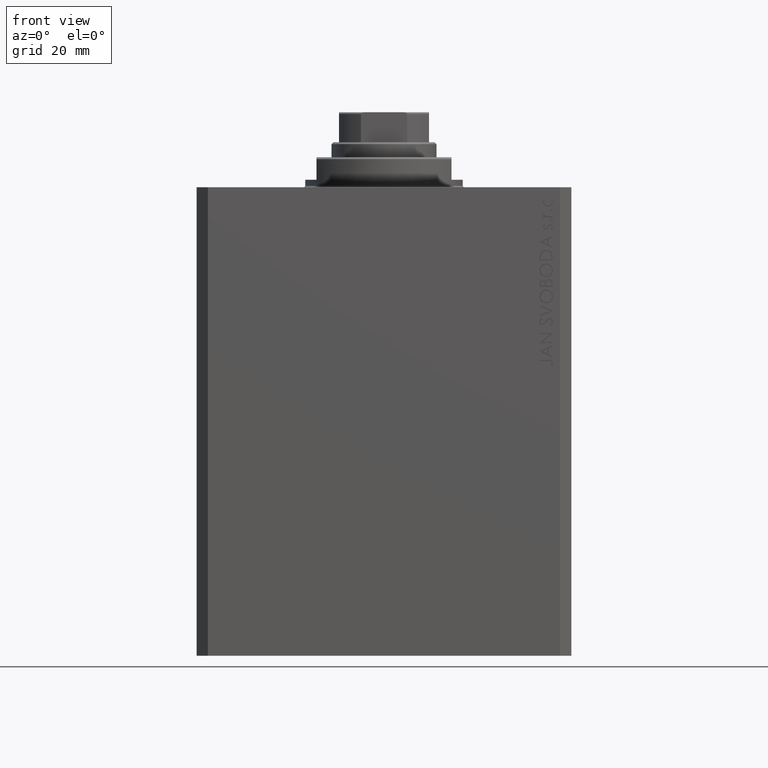
[diagram: clean part render]
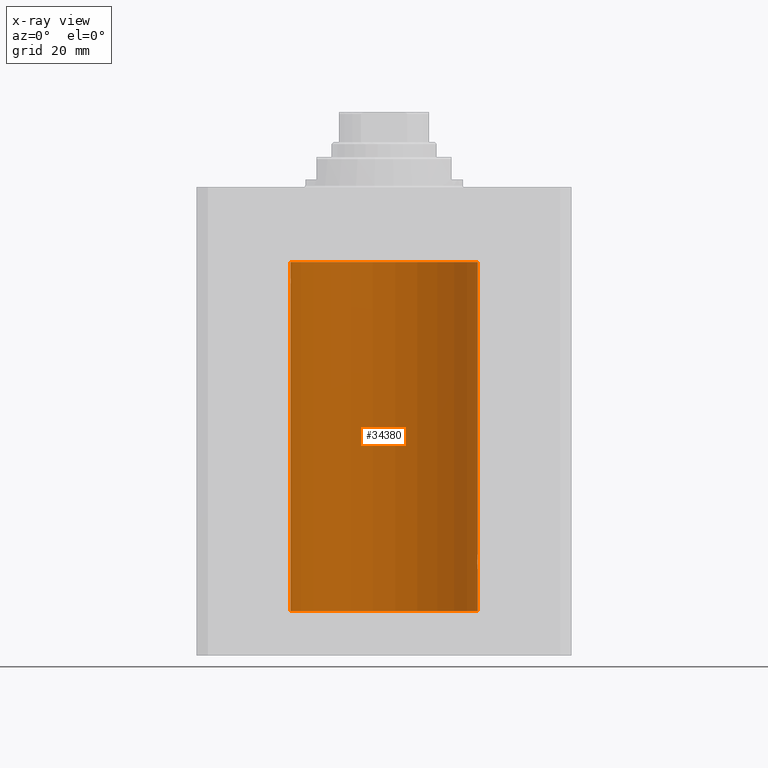
[diagram: x-ray — body ghosted, one internal face saturated and labeled with its STEP entity id]
A machine part, front view, then the same camera in x-ray: the body is ghosted and one INTERNAL B-rep face — a face not visible from any outside direction — is saturated and labeled: STEP entity #34380.
In plain terms, the highlighted cylindrical surface (partial cylindrical patch) has radius 25 mm, axis along (0, 0, 1).
Its self-contained STEP definition (entity closure, byte-faithful):
#56 = CARTESIAN_POINT ( 'NONE',  ( 25.00000000000000000, 3.613683980139323145E-15, -102.0000000000000142 ) ) ;
#1412 = CARTESIAN_POINT ( 'NONE',  ( -24.91986783040116649, 2.000046828840892577, -25.12978542103931545 ) ) ;
#1750 = DIRECTION ( 'NONE',  ( 0.000000000000000000, 0.000000000000000000, 1.000000000000000000 ) ) ;
#1823 = CARTESIAN_POINT ( 'NONE',  ( 24.95467834240023919, 1.507571193169164436, -98.67914516237102873 ) ) ;
#2035 = CARTESIAN_POINT ( 'NONE',  ( 24.91987158875419794, 2.000000000000375255, -100.0000000000000000 ) ) ;
#2046 = CARTESIAN_POINT ( 'NONE',  ( 24.93982559358191153, 1.735040297787688646, -98.99670286233153149 ) ) ;
#2110 = CARTESIAN_POINT ( 'NONE',  ( -24.93531696180024682, 1.797913585505315215, -25.88582454002299826 ) ) ;
#2623 = DIRECTION ( 'NONE',  ( 1.000000000000000000, 0.000000000000000000, 0.000000000000000000 ) ) ;
#3404 = CARTESIAN_POINT ( 'NONE',  ( 24.93900639076503722, 1.748128916801924504, -101.0059564568424264 ) ) ;
#3906 = VERTEX_POINT ( 'NONE', #2035 ) ;
#4458 = VERTEX_POINT ( 'NONE', #13152 ) ;
#4660 = ORIENTED_EDGE ( 'NONE', *, *, #43596, .T. ) ;
#4936 = CARTESIAN_POINT ( 'NONE',  ( 24.98009620012517829, 1.003265033550135854, -98.26494305889434600 ) ) ;
#4957 = CARTESIAN_POINT ( 'NONE',  ( 0.000000000000000000, 0.000000000000000000, -20.00000000000000355 ) ) ;
#5201 = ORIENTED_EDGE ( 'NONE', *, *, #37148, .F. ) ;
#5227 = CARTESIAN_POINT ( 'NONE',  ( -24.96524308704138662, 1.321128302361972873, -26.50733385850702817 ) ) ;
#5539 = B_SPLINE_CURVE_WITH_KNOTS ( 'NONE', 3,
 ( #16906, #45557, #41741, #30777, #38395, #27192, #41279, #38159, #12397, #13098, #8587, #23129, #34111, #1412, #20241, #34812, #8813, #2110, #20018, #27657, #34588, #5227, #16443, #42212, #31002, #5703, #31230, #27424, #38619, #15967 ),
 .UNSPECIFIED., .F., .F.,
 ( 4, 2, 2, 2, 2, 2, 2, 2, 2, 2, 2, 2, 2, 2, 4 ),
 ( 1.711460648662030874E-19, 0.0003909631133201684925, 0.0007819262266403368767, 0.001172889339960505152, 0.001563852453280673536, 0.002345778679921010305, 0.003127704906561347507, 0.003518668019881516108, 0.003909631133201684275, 0.004300594246521852876, 0.004691557359842020609, 0.005082520473162189210, 0.005473483586482357811, 0.005864446699802525545, 0.006255409813122695013 ),
 .UNSPECIFIED. ) ;
#5572 = CIRCLE ( 'NONE', #26150, 25.00000000000000000 ) ;
#5703 = CARTESIAN_POINT ( 'NONE',  ( -24.99199174798888023, 0.6442364453337716679, -26.89793475977048232 ) ) ;
#6189 = ORIENTED_EDGE ( 'NONE', *, *, #10007, .T. ) ;
#6253 = VERTEX_POINT ( 'NONE', #39879 ) ;
#6793 = AXIS2_PLACEMENT_3D ( 'NONE', #34629, #16950, #2623 ) ;
#6965 = VERTEX_POINT ( 'NONE', #8689 ) ;
#7174 = EDGE_CURVE ( 'NONE', #46425, #6965, #25358, .T. ) ;
#7767 = ORIENTED_EDGE ( 'NONE', *, *, #7174, .F. ) ;
#8090 = ORIENTED_EDGE ( 'NONE', *, *, #45064, .F. ) ;
#8469 = EDGE_CURVE ( 'NONE', #46425, #18942, #5539, .T. ) ;
#8518 = CARTESIAN_POINT ( 'NONE',  ( 25.00000000000000000, -1.072061970195355044E-23, -98.00000000000000000 ) ) ;
#8587 = CARTESIAN_POINT ( 'NONE',  ( -24.93902394873053296, 1.747880816115506164, -23.99362802520557025 ) ) ;
#8689 = CARTESIAN_POINT ( 'NONE',  ( -25.00000000000000000, 3.061616997868383043E-15, -20.00000000000000355 ) ) ;
#8813 = CARTESIAN_POINT ( 'NONE',  ( -24.92788761901291750, 1.898142276082072089, -25.64361034516351978 ) ) ;
#8978 = CARTESIAN_POINT ( 'NONE',  ( 24.98457651818866765, 0.8863534138924961114, -98.20234421602245334 ) ) ;
#9327 = CYLINDRICAL_SURFACE ( 'NONE', #6793, 25.00000000000000000 ) ;
#9350 = VECTOR ( 'NONE', #10245, 1000.000000000000000 ) ;
#10007 = EDGE_CURVE ( 'NONE', #4458, #3906, #22645, .T. ) ;
#10067 = CIRCLE ( 'NONE', #42839, 25.00000000000000000 ) ;
#10245 = DIRECTION ( 'NONE',  ( -0.000000000000000000, -0.000000000000000000, 1.000000000000000000 ) ) ;
#10716 = EDGE_CURVE ( 'NONE', #3906, #30111, #46495, .T. ) ;
#11882 = DIRECTION ( 'NONE',  ( 0.000000000000000000, 0.000000000000000000, 1.000000000000000000 ) ) ;
#12092 = CARTESIAN_POINT ( 'NONE',  ( 24.92495585240437350, 1.935777409849491759, -99.48051441220836466 ) ) ;
#12397 = CARTESIAN_POINT ( 'NONE',  ( -24.96517827869064021, 1.322271947215002852, -23.49381014772490417 ) ) ;
#12571 = CARTESIAN_POINT ( 'NONE',  ( 24.94947734723934829, 1.590234439578154468, -98.78011295253192259 ) ) ;
#12826 = EDGE_CURVE ( 'NONE', #30111, #43896, #21506, .T. ) ;
#13028 = CARTESIAN_POINT ( 'NONE',  ( 24.92092960952687264, 1.986938806757485132, -99.73699118910590755 ) ) ;
#13098 = CARTESIAN_POINT ( 'NONE',  ( -24.94950203352433604, 1.598895442473012851, -23.77053781758364792 ) ) ;
#13152 = CARTESIAN_POINT ( 'NONE',  ( 25.00000000000000000, 3.613683980139323145E-15, -102.0000000000000142 ) ) ;
#13700 = ORIENTED_EDGE ( 'NONE', *, *, #10716, .T. ) ;
#13917 = CARTESIAN_POINT ( 'NONE',  ( 24.97046928552373046, 1.219632852334577633, -101.5904672177837540 ) ) ;
#14156 = CARTESIAN_POINT ( 'NONE',  ( 24.91987158875419794, 2.000000000000375255, -100.0000000000000000 ) ) ;
#14626 = CARTESIAN_POINT ( 'NONE',  ( 24.91987158875419439, 2.000000000000375699, -100.2610752061100072 ) ) ;
#15899 = CARTESIAN_POINT ( 'NONE',  ( 24.97045842037802998, 1.219816859706691625, -98.40971381657300299 ) ) ;
#15967 = CARTESIAN_POINT ( 'NONE',  ( -25.00000000000000000, 3.061616987151861079E-15, -26.99999999999999645 ) ) ;
#16143 = CARTESIAN_POINT ( 'NONE',  ( 24.92790171662583276, 1.897957730269075105, -99.35585098575664631 ) ) ;
#16373 = CARTESIAN_POINT ( 'NONE',  ( -25.00000000000000000, 3.061616997868383043E-15, -113.0999999999999943 ) ) ;
#16374 = CARTESIAN_POINT ( 'NONE',  ( 24.99894413130754600, 0.2631018416927612402, -98.01307842488789390 ) ) ;
#16443 = CARTESIAN_POINT ( 'NONE',  ( -24.97044682385318026, 1.220055540032808805, -26.59010549084178265 ) ) ;
#16760 = CARTESIAN_POINT ( 'NONE',  ( 0.000000000000000000, 0.000000000000000000, -113.0999999999999943 ) ) ;
#16906 = CARTESIAN_POINT ( 'NONE',  ( -25.00000000000000000, -9.880247245846597702E-15, -23.00000000000000000 ) ) ;
#16950 = DIRECTION ( 'NONE',  ( -0.000000000000000000, -0.000000000000000000, 1.000000000000000000 ) ) ;
#18187 = VERTEX_POINT ( 'NONE', #22718 ) ;
#18440 = CARTESIAN_POINT ( 'NONE',  ( 24.96516502151963124, 1.322522485723470531, -101.5059723511098184 ) ) ;
#18942 = VERTEX_POINT ( 'NONE', #21560 ) ;
#19487 = CARTESIAN_POINT ( 'NONE',  ( 24.99199530066696795, 0.6440939830361788188, -98.10201906410962636 ) ) ;
#20018 = CARTESIAN_POINT ( 'NONE',  ( -24.93980871060585258, 1.735282661184229358, -26.00288189918856219 ) ) ;
#20039 = CARTESIAN_POINT ( 'NONE',  ( 25.00000000000000000, 0.000000000000000000, -113.0999999999999943 ) ) ;
#20241 = CARTESIAN_POINT ( 'NONE',  ( -24.92092244115666944, 1.987028274514494930, -25.26234881237649432 ) ) ;
#21506 = LINE ( 'NONE', #32021, #34375 ) ;
#21560 = CARTESIAN_POINT ( 'NONE',  ( -25.00000000000000000, 3.061616987151861079E-15, -26.99999999999999645 ) ) ;
#21685 = EDGE_LOOP ( 'NONE', ( #5201, #8090, #4660, #6189, #13700, #41936, #40094, #7767, #36976 ) ) ;
#22645 = B_SPLINE_CURVE_WITH_KNOTS ( 'NONE', 3,
 ( #56, #32289, #47087, #46855, #28477, #46613, #36106, #13917, #18440, #28945, #3404, #43028, #14626, #14156 ),
 .UNSPECIFIED., .F., .F.,
 ( 4, 2, 2, 2, 2, 2, 4 ),
 ( 3.511612687242254074E-18, 0.0003910529405526748294, 0.0007821058811053461894, 0.001173158821658017766, 0.001564211762210689343, 0.002346317643316032063, 0.003128423524421375217 ),
 .UNSPECIFIED. ) ;
#22718 = CARTESIAN_POINT ( 'NONE',  ( 25.00000000000000000, 0.000000000000000000, -113.0999999999999943 ) ) ;
#23129 = CARTESIAN_POINT ( 'NONE',  ( -24.92424086025528496, 1.947362422016076788, -24.47497476601984090 ) ) ;
#23288 = DIRECTION ( 'NONE',  ( -0.000000000000000000, -0.000000000000000000, 1.000000000000000000 ) ) ;
#23990 = CARTESIAN_POINT ( 'NONE',  ( 24.99493190796009046, 0.5194315891213243663, -98.06421314474680173 ) ) ;
#25115 = DIRECTION ( 'NONE',  ( -0.000000000000000000, -0.000000000000000000, 1.000000000000000000 ) ) ;
#25358 = LINE ( 'NONE', #46359, #39823 ) ;
#26150 = AXIS2_PLACEMENT_3D ( 'NONE', #16760, #1750, #30862 ) ;
#26633 = CARTESIAN_POINT ( 'NONE',  ( -25.00000000000000000, -9.880247245846597702E-15, -23.00000000000000000 ) ) ;
#27129 = CARTESIAN_POINT ( 'NONE',  ( 24.96525661602875701, 1.320872503675244003, -98.49244428507738292 ) ) ;
#27192 = CARTESIAN_POINT ( 'NONE',  ( -24.98454822070441850, 0.8871466876120172040, -23.20273613247366384 ) ) ;
#27351 = CARTESIAN_POINT ( 'NONE',  ( 24.93533359819881667, 1.797683477752171743, -99.11371245509397454 ) ) ;
#27424 = CARTESIAN_POINT ( 'NONE',  ( -24.99894363691344168, 0.2631623743596695486, -26.98691550260398841 ) ) ;
#27657 = CARTESIAN_POINT ( 'NONE',  ( -24.94946096189906015, 1.590491165172939647, -26.21955560407613461 ) ) ;
#28455 = DIRECTION ( 'NONE',  ( -0.000000000000000000, -0.000000000000000000, 1.000000000000000000 ) ) ;
#28477 = CARTESIAN_POINT ( 'NONE',  ( 24.99196954445030627, 0.6450912151121352966, -101.8976436764501869 ) ) ;
#28945 = CARTESIAN_POINT ( 'NONE',  ( 24.94948532700468391, 1.599156973339999066, -101.2291341524913690 ) ) ;
#28986 = VECTOR ( 'NONE', #23288, 1000.000000000000000 ) ;
#29997 = CARTESIAN_POINT ( 'NONE',  ( 25.00000000000000000, -1.072061970195355044E-23, -98.00000000000000000 ) ) ;
#30111 = VERTEX_POINT ( 'NONE', #29997 ) ;
#30777 = CARTESIAN_POINT ( 'NONE',  ( -24.99496228453478608, 0.5178909248663671194, -23.06382286360416956 ) ) ;
#30862 = DIRECTION ( 'NONE',  ( 1.000000000000000000, 0.000000000000000000, 0.000000000000000000 ) ) ;
#30936 = CARTESIAN_POINT ( 'NONE',  ( 25.00000000000000000, 0.1305261351234896783, -97.99999999999998579 ) ) ;
#31002 = CARTESIAN_POINT ( 'NONE',  ( -24.98456984035221851, 0.8865449913022026562, -26.79756360895472156 ) ) ;
#31230 = CARTESIAN_POINT ( 'NONE',  ( -24.99492963589240091, 0.5195477780157325975, -26.93575766978349151 ) ) ;
#31277 = FACE_OUTER_BOUND ( 'NONE', #21685, .T. ) ;
#32021 = CARTESIAN_POINT ( 'NONE',  ( 25.00000000000000000, 0.000000000000000000, -113.0999999999999943 ) ) ;
#32289 = CARTESIAN_POINT ( 'NONE',  ( 25.00000000000000355, 0.1322318523520167877, -102.0000000000000142 ) ) ;
#34069 = DIRECTION ( 'NONE',  ( 1.000000000000000000, 0.000000000000000000, 0.000000000000000000 ) ) ;
#34111 = CARTESIAN_POINT ( 'NONE',  ( -24.91987913663314558, 1.999905953907249456, -24.73827023896789967 ) ) ;
#34276 = CARTESIAN_POINT ( 'NONE',  ( 24.91987158875419439, 2.000000000000375699, -99.86952236750346401 ) ) ;
#34375 = VECTOR ( 'NONE', #28455, 1000.000000000000000 ) ;
#34380 = ADVANCED_FACE ( 'NONE', ( #31277 ), #9327, .F. ) ;
#34588 = CARTESIAN_POINT ( 'NONE',  ( -24.95466269969938011, 1.507830206157726893, -26.32056178261444046 ) ) ;
#34629 = CARTESIAN_POINT ( 'NONE',  ( 0.000000000000000000, 0.000000000000000000, -113.0999999999999943 ) ) ;
#34812 = CARTESIAN_POINT ( 'NONE',  ( -24.92494360443313894, 1.935934657392621272, -25.51890776192067278 ) ) ;
#36106 = CARTESIAN_POINT ( 'NONE',  ( 24.98014008684978648, 1.002218476749560327, -101.7356982428406553 ) ) ;
#36976 = ORIENTED_EDGE ( 'NONE', *, *, #8469, .T. ) ;
#37148 = EDGE_CURVE ( 'NONE', #6253, #18942, #45715, .T. ) ;
#38159 = CARTESIAN_POINT ( 'NONE',  ( -24.97048098995609422, 1.219391728175664324, -23.40935049578022031 ) ) ;
#38323 = CARTESIAN_POINT ( 'NONE',  ( 24.91987158875419794, 2.000000000000375255, -100.0000000000000000 ) ) ;
#38395 = CARTESIAN_POINT ( 'NONE',  ( -24.99197317726958545, 0.6449463114735953795, -23.10230905830972858 ) ) ;
#38619 = CARTESIAN_POINT ( 'NONE',  ( -25.00000000000001066, 0.1305561315491718666, -27.00000000000000711 ) ) ;
#39289 = CARTESIAN_POINT ( 'NONE',  ( 25.00000000000000000, 0.000000000000000000, -20.00000000000000355 ) ) ;
#39823 = VECTOR ( 'NONE', #25115, 1000.000000000000000 ) ;
#39879 = CARTESIAN_POINT ( 'NONE',  ( -25.00000000000000000, 3.061616997868383043E-15, -113.0999999999999943 ) ) ;
#40094 = ORIENTED_EDGE ( 'NONE', *, *, #42841, .T. ) ;
#41279 = CARTESIAN_POINT ( 'NONE',  ( -24.98014837415680489, 1.002010110534174547, -23.26418383162123149 ) ) ;
#41741 = CARTESIAN_POINT ( 'NONE',  ( -24.99895219182537787, 0.2621830013652935443, -23.01297886590101172 ) ) ;
#41936 = ORIENTED_EDGE ( 'NONE', *, *, #12826, .T. ) ;
#42212 = CARTESIAN_POINT ( 'NONE',  ( -24.98008786170526108, 1.003474227436682797, -26.73493817401089956 ) ) ;
#42839 = AXIS2_PLACEMENT_3D ( 'NONE', #4957, #11882, #34069 ) ;
#42841 = EDGE_CURVE ( 'NONE', #43896, #6965, #10067, .T. ) ;
#42941 = LINE ( 'NONE', #20039, #9350 ) ;
#43028 = CARTESIAN_POINT ( 'NONE',  ( 24.92422785753204906, 1.947526681255389525, -100.5244453533215392 ) ) ;
#43596 = EDGE_CURVE ( 'NONE', #18187, #4458, #42941, .T. ) ;
#43896 = VERTEX_POINT ( 'NONE', #39289 ) ;
#45064 = EDGE_CURVE ( 'NONE', #18187, #6253, #5572, .T. ) ;
#45557 = CARTESIAN_POINT ( 'NONE',  ( -25.00000000000000000, 0.1322014778934262891, -23.00000000000000355 ) ) ;
#45715 = LINE ( 'NONE', #16373, #28986 ) ;
#46359 = CARTESIAN_POINT ( 'NONE',  ( -25.00000000000000000, 3.061616997868383043E-15, -113.0999999999999943 ) ) ;
#46425 = VERTEX_POINT ( 'NONE', #26633 ) ;
#46495 = B_SPLINE_CURVE_WITH_KNOTS ( 'NONE', 3,
 ( #38323, #34276, #13028, #12092, #16143, #27351, #2046, #12571, #1823, #27129, #15899, #4936, #8978, #19487, #23990, #16374, #30936, #8518 ),
 .UNSPECIFIED., .F., .F.,
 ( 4, 2, 2, 2, 2, 2, 2, 2, 4 ),
 ( 0.003128423524421375217, 0.003519296810509137119, 0.003910170096596899021, 0.004301043382684660923, 0.004691916668772423693, 0.005082789954860184728, 0.005473663240947946630, 0.005864536527035708532, 0.006255409813123470435 ),
 .UNSPECIFIED. ) ;
#46613 = CARTESIAN_POINT ( 'NONE',  ( 24.98454161695537223, 0.8873356620645981296, -101.7971726743456742 ) ) ;
#46855 = CARTESIAN_POINT ( 'NONE',  ( 24.99496001540385848, 0.5180074392840622322, -101.9361479946135205 ) ) ;
#47087 = CARTESIAN_POINT ( 'NONE',  ( 24.99895171050671294, 0.2622427397369110347, -101.9870152263268182 ) ) ;